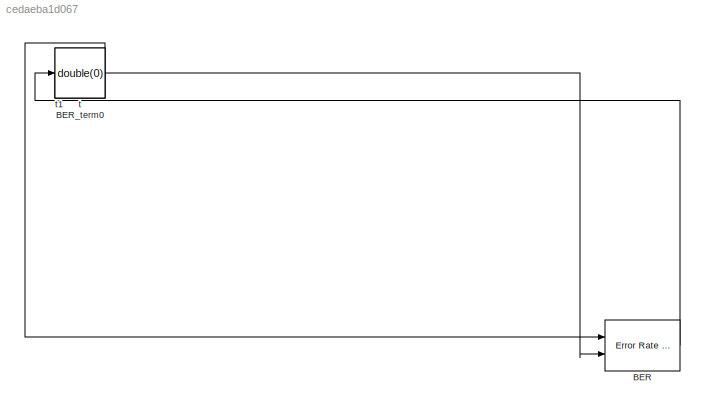
MODEL slx_cedaeba1d067
KIND model
CONFIG AbsTol = auto
CONFIG EnableMultiTasking = off
CONFIG FixedStep = auto
CONFIG MaxStep = auto
CONFIG MinStep = auto
CONFIG RelTol = 1e-3
CONFIG SampleTimeConstraint = Unconstrained
CONFIG SolverName = VariableStepAuto
CONFIG StartTime = 0.0
CONFIG StopTime = 10.0
BLOCK [Reference] BER  REF=commsink2/Error Rate
Calculation
  Ports = [2, 1]
  SourceBlock = commsink2/Error Rate\nCalculation
  SourceProductBaseCode = CM
  SourceType = Error Rate Calculation
BLOCK [Terminator] BER_term0
BLOCK [Constant] t
  OutDataTypeStr = double
  Value = double(0)
BLOCK [Constant] t1
  OutDataTypeStr = double
  Value = double(0)
LINE BER:1 -> BER_term0:1
LINE t1:1 -> BER:1
LINE t:1 -> BER:2
